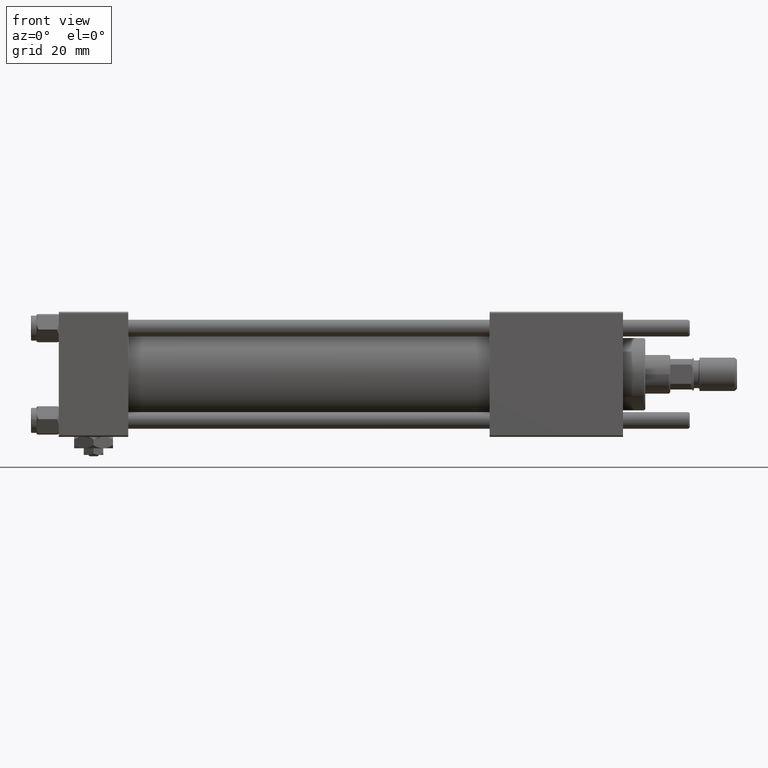
[diagram: clean part render]
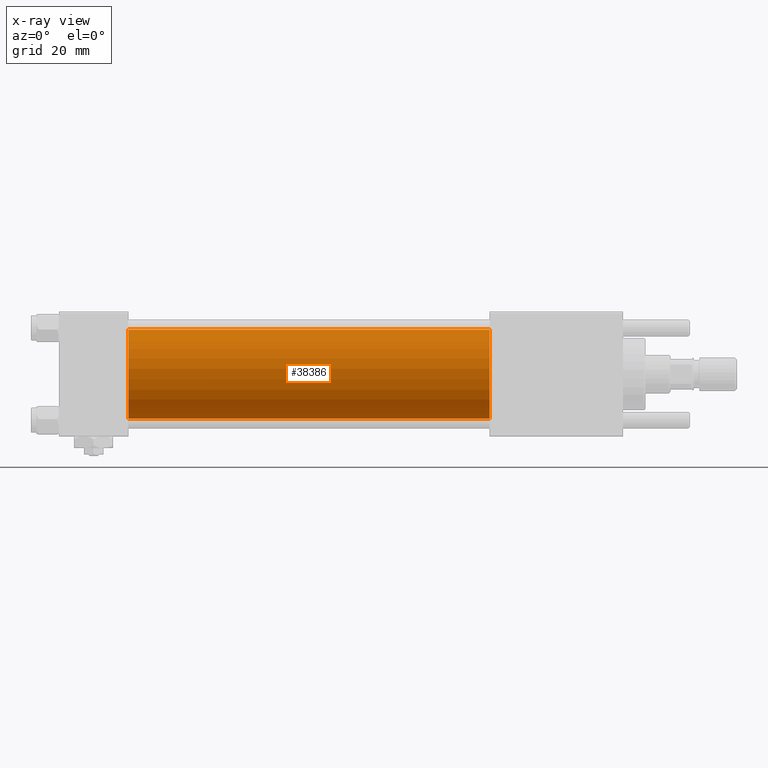
[diagram: x-ray — body ghosted, one internal face saturated and labeled with its STEP entity id]
A machine part, front view, then the same camera in x-ray: the body is ghosted and one INTERNAL B-rep face — a face not visible from any outside direction — is saturated and labeled: STEP entity #38386.
In plain terms, the highlighted cylindrical surface (partial cylindrical patch) has radius 16 mm, axis along (-1, -0, -0).
Its self-contained STEP definition (entity closure, byte-faithful):
#1978 = CARTESIAN_POINT ( 'NONE',  ( 155.0000000000000000, -2.602085213965210642E-15, 16.00000000000000000 ) ) ;
#8039 = EDGE_CURVE ( 'NONE', #15753, #18896, #17076, .T. ) ;
#8512 = FACE_OUTER_BOUND ( 'NONE', #56117, .T. ) ;
#9458 = AXIS2_PLACEMENT_3D ( 'NONE', #19768, #55988, #23958 ) ;
#11080 = LINE ( 'NONE', #43040, #39852 ) ;
#13038 = EDGE_CURVE ( 'NONE', #46702, #27773, #45890, .T. ) ;
#15753 = VERTEX_POINT ( 'NONE', #1978 ) ;
#17076 = CIRCLE ( 'NONE', #9458, 16.00000000000000000 ) ;
#18896 = VERTEX_POINT ( 'NONE', #39258 ) ;
#19165 = AXIS2_PLACEMENT_3D ( 'NONE', #29926, #34403, #57447 ) ;
#19768 = CARTESIAN_POINT ( 'NONE',  ( 155.0000000000000000, -2.602085213965210642E-15, 0.000000000000000000 ) ) ;
#20243 = VECTOR ( 'NONE', #25519, 1000.000000000000000 ) ;
#20667 = ORIENTED_EDGE ( 'NONE', *, *, #13038, .F. ) ;
#23958 = DIRECTION ( 'NONE',  ( 0.000000000000000000, 0.000000000000000000, -1.000000000000000000 ) ) ;
#24505 = ORIENTED_EDGE ( 'NONE', *, *, #42723, .T. ) ;
#25519 = DIRECTION ( 'NONE',  ( -1.000000000000000000, -0.000000000000000000, -0.000000000000000000 ) ) ;
#26730 = CYLINDRICAL_SURFACE ( 'NONE', #51678, 16.00000000000000000 ) ;
#27281 = EDGE_CURVE ( 'NONE', #15753, #46702, #11080, .T. ) ;
#27328 = CARTESIAN_POINT ( 'NONE',  ( 25.00000000000000000, -6.426503353294456087E-16, -16.00000000000000000 ) ) ;
#27773 = VERTEX_POINT ( 'NONE', #27328 ) ;
#28427 = DIRECTION ( 'NONE',  ( -1.000000000000000000, -0.000000000000000000, -0.000000000000000000 ) ) ;
#29926 = CARTESIAN_POINT ( 'NONE',  ( 25.00000000000000000, -2.602085213965210642E-15, 0.000000000000000000 ) ) ;
#34403 = DIRECTION ( 'NONE',  ( 1.000000000000000000, 0.000000000000000000, 0.000000000000000000 ) ) ;
#36605 = CARTESIAN_POINT ( 'NONE',  ( 155.0000000000000000, -2.602085213965210642E-15, 0.000000000000000000 ) ) ;
#38386 = ADVANCED_FACE ( 'NONE', ( #8512 ), #26730, .F. ) ;
#39258 = CARTESIAN_POINT ( 'NONE',  ( 155.0000000000000000, -6.426503353294456087E-16, -16.00000000000000000 ) ) ;
#39852 = VECTOR ( 'NONE', #28427, 1000.000000000000000 ) ;
#42038 = ORIENTED_EDGE ( 'NONE', *, *, #27281, .F. ) ;
#42723 = EDGE_CURVE ( 'NONE', #18896, #27773, #47662, .T. ) ;
#43040 = CARTESIAN_POINT ( 'NONE',  ( 155.0000000000000000, -2.602085213965210642E-15, 16.00000000000000000 ) ) ;
#45890 = CIRCLE ( 'NONE', #19165, 16.00000000000000000 ) ;
#46702 = VERTEX_POINT ( 'NONE', #56465 ) ;
#47079 = CARTESIAN_POINT ( 'NONE',  ( 155.0000000000000000, -6.426503353294456087E-16, -16.00000000000000000 ) ) ;
#47662 = LINE ( 'NONE', #47079, #20243 ) ;
#50443 = ORIENTED_EDGE ( 'NONE', *, *, #8039, .T. ) ;
#51678 = AXIS2_PLACEMENT_3D ( 'NONE', #36605, #54850, #58760 ) ;
#54850 = DIRECTION ( 'NONE',  ( -1.000000000000000000, -0.000000000000000000, -0.000000000000000000 ) ) ;
#55988 = DIRECTION ( 'NONE',  ( 1.000000000000000000, 0.000000000000000000, 0.000000000000000000 ) ) ;
#56117 = EDGE_LOOP ( 'NONE', ( #50443, #24505, #20667, #42038 ) ) ;
#56465 = CARTESIAN_POINT ( 'NONE',  ( 25.00000000000000000, -2.602085213965210642E-15, 16.00000000000000000 ) ) ;
#57447 = DIRECTION ( 'NONE',  ( 0.000000000000000000, 0.000000000000000000, -1.000000000000000000 ) ) ;
#58760 = DIRECTION ( 'NONE',  ( 0.000000000000000000, 0.000000000000000000, 1.000000000000000000 ) ) ;